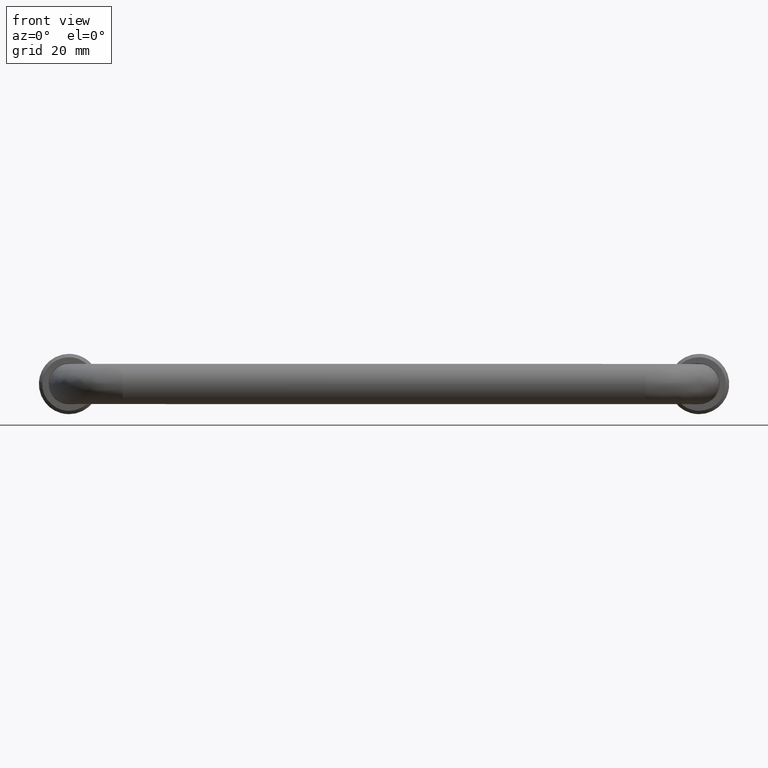
[diagram: clean part render]
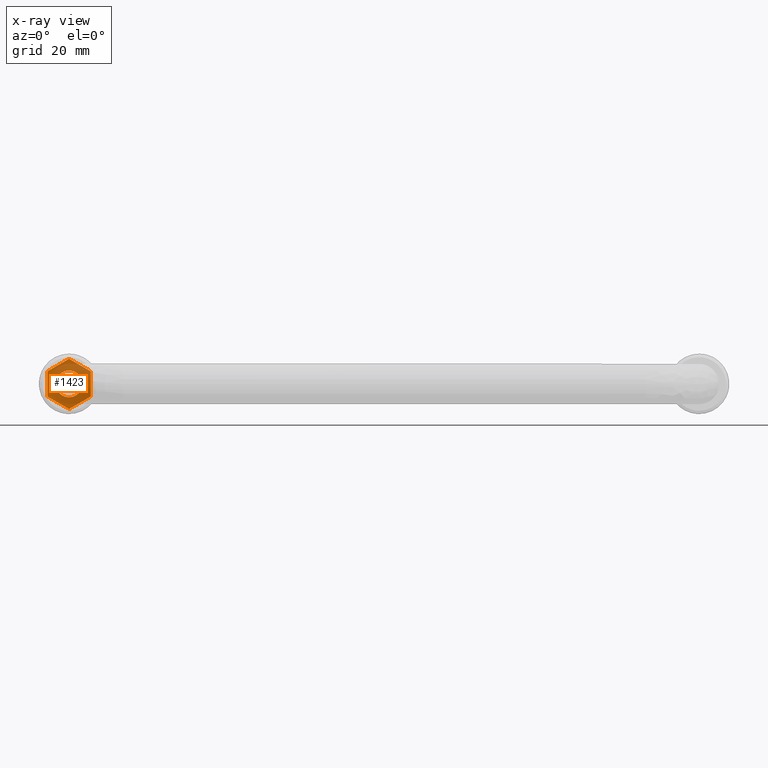
[diagram: x-ray — body ghosted, one internal face saturated and labeled with its STEP entity id]
A machine part, front view, then the same camera in x-ray: the body is ghosted and one INTERNAL B-rep face — a face not visible from any outside direction — is saturated and labeled: STEP entity #1423.
In plain terms, the highlighted face is a freeform B-spline surface patch.
Its self-contained STEP definition (entity closure, byte-faithful):
#877=CARTESIAN_POINT('',(-3.972038105381087,5.500000000000000,0.472136939246040));
#878=VERTEX_POINT('',#877);
#879=CARTESIAN_POINT('',(0.0,5.500000000000000,-4.0));
#880=VERTEX_POINT('',#879);
#881=CARTESIAN_POINT('',(-3.972038105381088,5.500000000000000,0.472136939246040));
#882=CARTESIAN_POINT('',(-4.0,5.499999999999999,0.236896479233191));
#883=CARTESIAN_POINT('',(-4.0,5.500000000000000,0.0));
#884=CARTESIAN_POINT('',(-4.000000000000000,5.500000000000001,-4.000000000000000));
#885=CARTESIAN_POINT('',(0.0,5.500000000000000,-4.0));
#893=(BOUNDED_CURVE()B_SPLINE_CURVE(2,(#881,#882,#883,#884,#885),.UNSPECIFIED.,.F.,.U.)B_SPLINE_CURVE_WITH_KNOTS((3,2,3),(0.229562473462969,0.250000000000000,0.500000000000000),.UNSPECIFIED.)CURVE()GEOMETRIC_REPRESENTATION_ITEM()RATIONAL_B_SPLINE_CURVE((0.956026754084640,0.976055948271935,1.0,0.707106781186548,1.0))REPRESENTATION_ITEM(''));
#894=EDGE_CURVE('',#878,#880,#893,.T.);
#896=CARTESIAN_POINT('',(3.992539193625594,5.500000000000001,-0.244194159151051));
#897=VERTEX_POINT('',#896);
#898=CARTESIAN_POINT('',(0.0,5.500000000000000,-4.0));
#899=CARTESIAN_POINT('',(3.762824265712359,5.500000000000000,-4.0));
#900=CARTESIAN_POINT('',(3.992539193625594,5.500000000000001,-0.244194159151051));
#908=(BOUNDED_CURVE()B_SPLINE_CURVE(2,(#898,#899,#900),.UNSPECIFIED.,.F.,.U.)B_SPLINE_CURVE_WITH_KNOTS((3,3),(0.500000000000000,0.739332962154528),.UNSPECIFIED.)CURVE()GEOMETRIC_REPRESENTATION_ITEM()RATIONAL_B_SPLINE_CURVE((1.0,0.719603993385608,0.976072041485801))REPRESENTATION_ITEM(''));
#909=EDGE_CURVE('',#880,#897,#908,.T.);
#976=CARTESIAN_POINT('',(0.0,5.500000000000000,4.0));
#977=VERTEX_POINT('',#976);
#978=CARTESIAN_POINT('',(0.0,5.500000000000000,4.0));
#979=CARTESIAN_POINT('',(-3.552698102690366,5.500000000000002,4.000000000000001));
#980=CARTESIAN_POINT('',(-3.972038105381088,5.500000000000000,0.472136939246040));
#988=(BOUNDED_CURVE()B_SPLINE_CURVE(2,(#978,#979,#980),.UNSPECIFIED.,.F.,.U.)B_SPLINE_CURVE_WITH_KNOTS((3,3),(0.0,0.229562473462969),.UNSPECIFIED.)CURVE()GEOMETRIC_REPRESENTATION_ITEM()RATIONAL_B_SPLINE_CURVE((1.0,0.731050832914613,0.956026754084640))REPRESENTATION_ITEM(''));
#989=EDGE_CURVE('',#977,#878,#988,.T.);
#1023=CARTESIAN_POINT('',(3.992539193625594,5.500000000000001,-0.244194159151051));
#1024=CARTESIAN_POINT('',(4.000000000000001,5.500000000000000,-0.122211054208815));
#1025=CARTESIAN_POINT('',(4.0,5.500000000000000,0.0));
#1026=CARTESIAN_POINT('',(4.000000000000000,5.500000000000001,4.000000000000000));
#1027=CARTESIAN_POINT('',(0.0,5.500000000000000,4.0));
#1035=(BOUNDED_CURVE()B_SPLINE_CURVE(2,(#1023,#1024,#1025,#1026,#1027),.UNSPECIFIED.,.F.,.U.)B_SPLINE_CURVE_WITH_KNOTS((3,2,3),(0.739332962154529,0.750000000000000,1.0),.UNSPECIFIED.)CURVE()GEOMETRIC_REPRESENTATION_ITEM()RATIONAL_B_SPLINE_CURVE((0.976072041485803,0.987502787800940,1.0,0.707106781186548,1.0))REPRESENTATION_ITEM(''));
#1036=EDGE_CURVE('',#897,#977,#1035,.T.);
#1368=CARTESIAN_POINT('',(-7.149349974803477,5.500000000000000,8.255301777461320));
#1369=CARTESIAN_POINT('',(7.149350323490650,5.500000000000000,8.255301777461320));
#1370=CARTESIAN_POINT('',(-7.149349974803477,5.500000000000000,-8.255352313670581));
#1371=CARTESIAN_POINT('',(7.149350323490650,5.500000000000000,-8.255352313670581));
#1372=B_SPLINE_SURFACE_WITH_KNOTS('',1,1,((#1368,#1370),(#1369,#1371)),.UNSPECIFIED.,.F.,.F.,.U.,(2,2),(2,2),(0.0,14.298700298294129),(0.0,16.510654091131901),.UNSPECIFIED.);
#1373=CARTESIAN_POINT('',(-6.500000000000000,5.500000000000000,-3.752805773529585));
#1374=VERTEX_POINT('',#1373);
#1375=CARTESIAN_POINT('',(-6.500000000000000,5.500000000000000,3.752794226606510));
#1376=VERTEX_POINT('',#1375);
#1377=CARTESIAN_POINT('',(-6.500000000000000,5.500000000000000,-3.752805773529585));
#1378=CARTESIAN_POINT('',(-6.500000000000000,5.500000000000000,3.752794226606510));
#1379=QUASI_UNIFORM_CURVE('',1,(#1377,#1378),.UNSPECIFIED.,.F.,.U.);
#1380=EDGE_CURVE('',#1374,#1376,#1379,.T.);
#1381=ORIENTED_EDGE('',*,*,#1380,.F.);
#1382=CARTESIAN_POINT('',(-0.000086603224330,5.500000000000000,-7.505549999372279));
#1383=VERTEX_POINT('',#1382);
#1384=CARTESIAN_POINT('',(-0.000086603224330,5.500000000000000,-7.505549999372279));
#1385=CARTESIAN_POINT('',(-6.500000000000000,5.500000000000000,-3.752805773529585));
#1386=QUASI_UNIFORM_CURVE('',1,(#1384,#1385),.UNSPECIFIED.,.F.,.U.);
#1387=EDGE_CURVE('',#1383,#1374,#1386,.T.);
#1388=ORIENTED_EDGE('',*,*,#1387,.F.);
#1389=CARTESIAN_POINT('',(6.500000000000000,5.500000000000000,-3.752800000000000));
#1390=VERTEX_POINT('',#1389);
#1391=CARTESIAN_POINT('',(6.500000000000000,5.500000000000000,-3.752800000000000));
#1392=CARTESIAN_POINT('',(-0.000086603224330,5.500000000000000,-7.505549999372279));
#1393=QUASI_UNIFORM_CURVE('',1,(#1391,#1392),.UNSPECIFIED.,.F.,.U.);
#1394=EDGE_CURVE('',#1390,#1383,#1393,.T.);
#1395=ORIENTED_EDGE('',*,*,#1394,.F.);
#1396=CARTESIAN_POINT('',(6.500000000000000,5.500000000000000,3.752800000000000));
#1397=VERTEX_POINT('',#1396);
#1398=CARTESIAN_POINT('',(6.500000000000000,5.500000000000000,3.752800000000000));
#1399=CARTESIAN_POINT('',(6.500000000000000,5.500000000000000,-3.752800000000000));
#1400=QUASI_UNIFORM_CURVE('',1,(#1398,#1399),.UNSPECIFIED.,.F.,.U.);
#1401=EDGE_CURVE('',#1397,#1390,#1400,.T.);
#1402=ORIENTED_EDGE('',*,*,#1401,.F.);
#1403=CARTESIAN_POINT('',(0.0,5.500000000000000,7.505500000000000));
#1404=VERTEX_POINT('',#1403);
#1405=CARTESIAN_POINT('',(0.0,5.500000000000000,7.505500000000000));
#1406=CARTESIAN_POINT('',(6.500000000000000,5.500000000000000,3.752800000000000));
#1407=QUASI_UNIFORM_CURVE('',1,(#1405,#1406),.UNSPECIFIED.,.F.,.U.);
#1408=EDGE_CURVE('',#1404,#1397,#1407,.T.);
#1409=ORIENTED_EDGE('',*,*,#1408,.F.);
#1410=CARTESIAN_POINT('',(-6.500000000000000,5.500000000000000,3.752794226606510));
#1411=CARTESIAN_POINT('',(0.0,5.500000000000000,7.505500000000000));
#1412=QUASI_UNIFORM_CURVE('',1,(#1410,#1411),.UNSPECIFIED.,.F.,.U.);
#1413=EDGE_CURVE('',#1376,#1404,#1412,.T.);
#1414=ORIENTED_EDGE('',*,*,#1413,.F.);
#1415=EDGE_LOOP('',(#1381,#1388,#1395,#1402,#1409,#1414));
#1416=FACE_OUTER_BOUND('',#1415,.T.);
#1417=ORIENTED_EDGE('',*,*,#909,.F.);
#1418=ORIENTED_EDGE('',*,*,#894,.F.);
#1419=ORIENTED_EDGE('',*,*,#989,.F.);
#1420=ORIENTED_EDGE('',*,*,#1036,.F.);
#1421=EDGE_LOOP('',(#1417,#1418,#1419,#1420));
#1422=FACE_BOUND('',#1421,.T.);
#1423=ADVANCED_FACE('',(#1416,#1422),#1372,.F.);